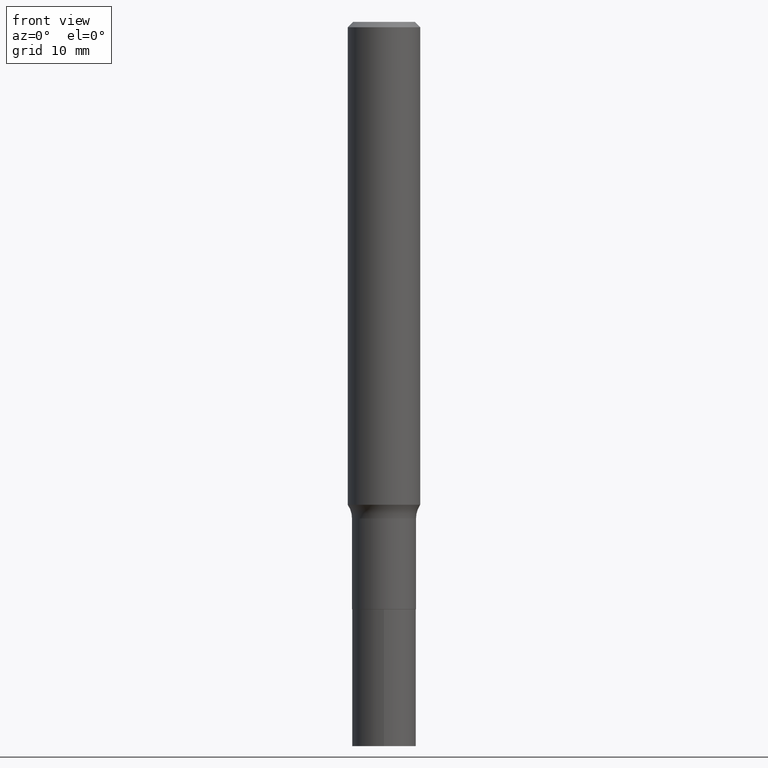
[diagram: clean part render]
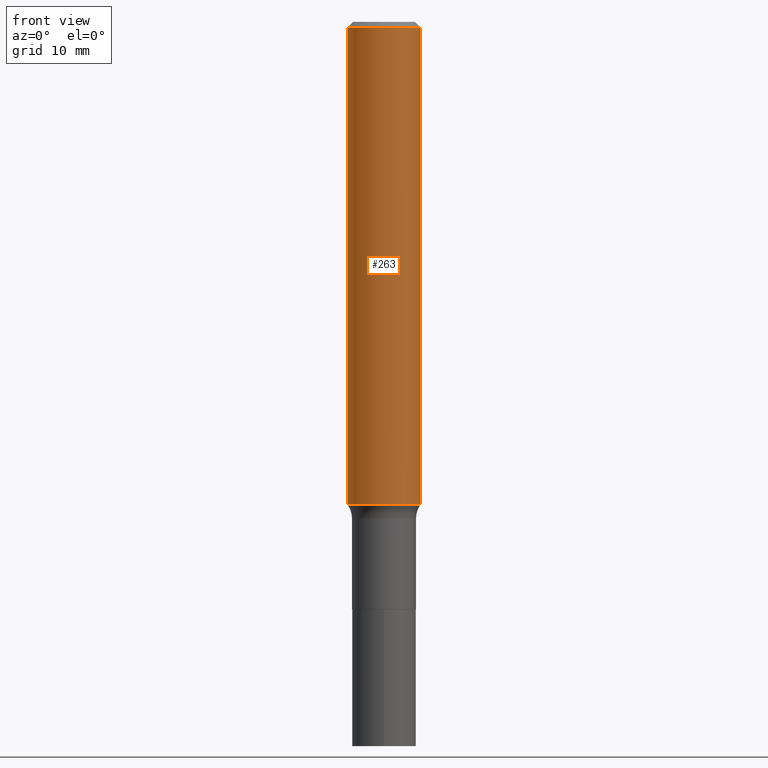
[diagram: same view with one face highlighted and labeled with its STEP entity id]
A machine part, front view. The second image highlights one B-rep face of the part: STEP entity #263.
In plain terms, the highlighted cylindrical surface (edge-blend (fillet) strip) has radius 2.9997 mm, axis along (-0, 0, 1).
Its self-contained STEP definition (entity closure, byte-faithful):
#3 = AXIS2_PLACEMENT_3D ( 'NONE', #84, #149, #396 ) ;
#4 = VECTOR ( 'NONE', #345, 39.37007874015748143 ) ;
#11 = DIRECTION ( 'NONE',  ( -2.445468806185136597E-29, 3.491481338843145583E-15, 1.000000000000000000 ) ) ;
#40 = CARTESIAN_POINT ( 'NONE',  ( -0.1180999999999999966, -1.941415052491705920E-15, -0.01771500000000010913 ) ) ;
#62 = VERTEX_POINT ( 'NONE', #327 ) ;
#78 = EDGE_CURVE ( 'NONE', #109, #62, #362, .T. ) ;
#84 = CARTESIAN_POINT ( 'NONE',  ( 4.332147990156996744E-31, -6.185159191760670395E-17, -0.01771500000000010913 ) ) ;
#109 = VERTEX_POINT ( 'NONE', #40 ) ;
#125 = DIRECTION ( 'NONE',  ( 1.000000000000000000, -6.982962677686268288E-15, 0.000000000000000000 ) ) ;
#149 = DIRECTION ( 'NONE',  ( -2.445468806185136597E-29, 3.491481338843145583E-15, 1.000000000000000000 ) ) ;
#154 = CARTESIAN_POINT ( 'NONE',  ( 0.1181000000000002326, -6.323968347165915031E-15, -1.575056522213369670 ) ) ;
#160 = CARTESIAN_POINT ( 'NONE',  ( 3.851751593051242505E-29, -5.499280454931165191E-15, -1.575056522213369670 ) ) ;
#164 = DIRECTION ( 'NONE',  ( -2.445468806185136877E-29, 3.491481338843145188E-15, 1.000000000000000000 ) ) ;
#186 = CARTESIAN_POINT ( 'NONE',  ( 0.000000000000000000, 0.000000000000000000, 0.000000000000000000 ) ) ;
#191 = ORIENTED_EDGE ( 'NONE', *, *, #78, .F. ) ;
#208 = AXIS2_PLACEMENT_3D ( 'NONE', #160, #11, #125 ) ;
#220 = CARTESIAN_POINT ( 'NONE',  ( -0.1181000000000002326, -4.660129483998485416E-15, -1.575056522213369670 ) ) ;
#240 = LINE ( 'NONE', #378, #436 ) ;
#255 = CYLINDRICAL_SURFACE ( 'NONE', #356, 0.1181000000000001077 ) ;
#256 = ORIENTED_EDGE ( 'NONE', *, *, #460, .T. ) ;
#263 = ADVANCED_FACE ( 'NONE', ( #303 ), #255, .T. ) ;
#277 = ORIENTED_EDGE ( 'NONE', *, *, #411, .F. ) ;
#299 = DIRECTION ( 'NONE',  ( 1.000000000000000000, -6.982962677686266711E-15, 4.876176775795935793E-29 ) ) ;
#303 = FACE_OUTER_BOUND ( 'NONE', #315, .T. ) ;
#306 = LINE ( 'NONE', #389, #4 ) ;
#309 = EDGE_CURVE ( 'NONE', #318, #380, #420, .T. ) ;
#315 = EDGE_LOOP ( 'NONE', ( #277, #454, #256, #191 ) ) ;
#318 = VERTEX_POINT ( 'NONE', #220 ) ;
#327 = CARTESIAN_POINT ( 'NONE',  ( 0.1180999999999999966, -8.865394841523547570E-16, -0.01771500000000010913 ) ) ;
#345 = DIRECTION ( 'NONE',  ( -2.445468806185136877E-29, 3.491481338843145188E-15, 1.000000000000000000 ) ) ;
#356 = AXIS2_PLACEMENT_3D ( 'NONE', #186, #408, #299 ) ;
#362 = CIRCLE ( 'NONE', #3, 0.1180999999999999966 ) ;
#378 = CARTESIAN_POINT ( 'NONE',  ( 0.1181000000000001077, -8.246878922347488542E-16, 5.758764772215005345E-30 ) ) ;
#380 = VERTEX_POINT ( 'NONE', #154 ) ;
#389 = CARTESIAN_POINT ( 'NONE',  ( -0.1181000000000001077, 8.391509709326790846E-16, -5.809262341591049389E-30 ) ) ;
#396 = DIRECTION ( 'NONE',  ( 1.000000000000000000, -6.982962677686266711E-15, 0.000000000000000000 ) ) ;
#408 = DIRECTION ( 'NONE',  ( -2.445468806185136597E-29, 3.491481338843145583E-15, 1.000000000000000000 ) ) ;
#411 = EDGE_CURVE ( 'NONE', #318, #109, #306, .T. ) ;
#420 = CIRCLE ( 'NONE', #208, 0.1181000000000002048 ) ;
#436 = VECTOR ( 'NONE', #164, 39.37007874015748143 ) ;
#454 = ORIENTED_EDGE ( 'NONE', *, *, #309, .T. ) ;
#460 = EDGE_CURVE ( 'NONE', #380, #62, #240, .T. ) ;